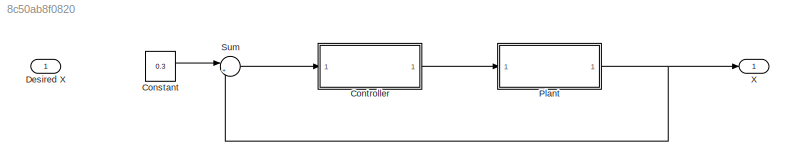
MODEL slx_8c50ab8f0820
KIND model
BLOCK [Constant] Constant
  Value = 0.3
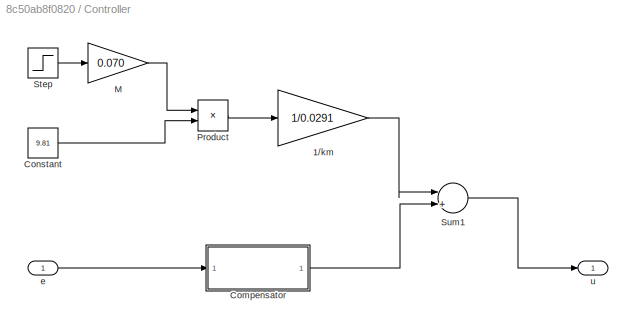
BLOCK [SubSystem] Controller
  FunctionWithSeparateData = off
  MaskHideContents = off
  MinAlgLoopOccurrences = off
  Opaque = off
  Ports = [1, 1]
  PropExecContextOutsideSubsystem = off
  RTWSystemCode = Auto
  RequestExecContextInheritance = off
BLOCK [Gain] Controller/1//km
  Gain = 1/0.0291
  OutDataTypeStr = Inherit: Inherit via internal rule
  ParamDataTypeStr = Inherit: Inherit via internal rule
  SaturateOnIntegerOverflow = off
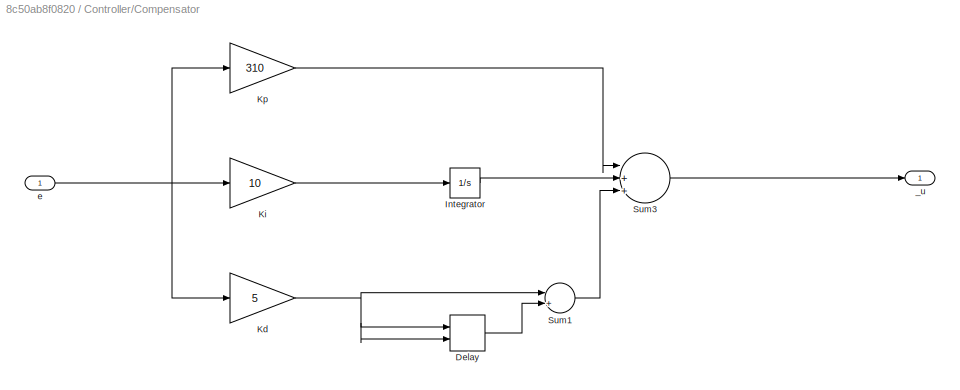
BLOCK [SubSystem] Controller/Compensator
  FunctionWithSeparateData = off
  MaskHideContents = off
  MinAlgLoopOccurrences = off
  Opaque = off
  Ports = [1, 1]
  PropExecContextOutsideSubsystem = off
  RTWSystemCode = Auto
  RequestExecContextInheritance = off
BLOCK [Delay] Controller/Compensator/Delay
  DelayLength = 1
  InitialCondition = 861
  InitialConditionSource = Input port
  InputPortMap = u0,p4
  InputProcessing = Inherited
  Ports = [2, 1]
  SampleTime = .01
BLOCK [Integrator] Controller/Compensator/Integrator
  Ports = [1, 1]
BLOCK [Gain] Controller/Compensator/Kd
  Gain = 5
  OutDataTypeStr = Inherit: Inherit via internal rule
  ParamDataTypeStr = Inherit: Inherit via internal rule
  SaturateOnIntegerOverflow = off
BLOCK [Gain] Controller/Compensator/Ki
  Gain = 10
  OutDataTypeStr = Inherit: Inherit via internal rule
  ParamDataTypeStr = Inherit: Inherit via internal rule
  SaturateOnIntegerOverflow = off
BLOCK [Gain] Controller/Compensator/Kp
  Gain = 310
  OutDataTypeStr = Inherit: Inherit via internal rule
  ParamDataTypeStr = Inherit: Inherit via internal rule
  SaturateOnIntegerOverflow = off
BLOCK [Sum] Controller/Compensator/Sum1
  InputSameDT = off
  Inputs = |+-
  OutDataTypeStr = Inherit: Inherit via internal rule
  Ports = [2, 1]
  SaturateOnIntegerOverflow = off
BLOCK [Sum] Controller/Compensator/Sum3
  InputSameDT = off
  Inputs = |+++
  OutDataTypeStr = Inherit: Inherit via internal rule
  Ports = [3, 1]
  SaturateOnIntegerOverflow = off
BLOCK [Outport] Controller/Compensator/_u
  IconDisplay = Port number
BLOCK [Inport] Controller/Compensator/e
  IconDisplay = Port number
BLOCK [Constant] Controller/Constant
  Value = 9.81
BLOCK [Gain] Controller/M
  Gain = 0.070
  OutDataTypeStr = Inherit: Inherit via internal rule
  ParamDataTypeStr = Inherit: Inherit via internal rule
  SaturateOnIntegerOverflow = off
BLOCK [Product] Controller/Product
  InputSameDT = off
  OutDataTypeStr = Inherit: Inherit via internal rule
  Ports = [2, 1]
  SaturateOnIntegerOverflow = off
BLOCK [Step] Controller/Step
  SampleTime = 0
  Time = 0
BLOCK [Sum] Controller/Sum1
  InputSameDT = off
  Inputs = |++
  OutDataTypeStr = Inherit: Inherit via internal rule
  Ports = [2, 1]
  SaturateOnIntegerOverflow = off
BLOCK [Inport] Controller/e
  IconDisplay = Port number
BLOCK [Outport] Controller/u
  IconDisplay = Port number
BLOCK [Inport] Desired X
  IconDisplay = Port number
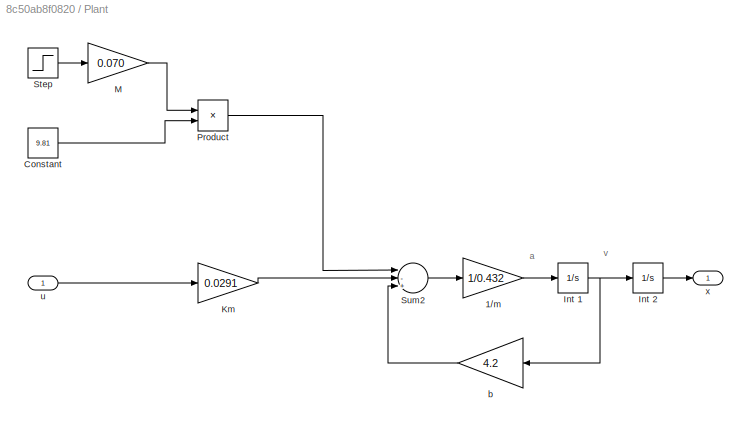
BLOCK [SubSystem] Plant
  FunctionWithSeparateData = off
  MaskHideContents = off
  MinAlgLoopOccurrences = off
  Opaque = off
  Ports = [1, 1]
  PropExecContextOutsideSubsystem = off
  RTWSystemCode = Auto
  RequestExecContextInheritance = off
BLOCK [Gain] Plant/1//m
  Gain = 1/0.432
  OutDataTypeStr = Inherit: Inherit via internal rule
  ParamDataTypeStr = Inherit: Inherit via internal rule
  SaturateOnIntegerOverflow = off
BLOCK [Constant] Plant/Constant
  Value = 9.81
BLOCK [Integrator] Plant/Int 1
  Ports = [1, 1]
BLOCK [Integrator] Plant/Int 2
  Ports = [1, 1]
BLOCK [Gain] Plant/Km
  Gain = 0.0291
  OutDataTypeStr = Inherit: Inherit via internal rule
  ParamDataTypeStr = Inherit: Inherit via internal rule
  SaturateOnIntegerOverflow = off
BLOCK [Gain] Plant/M
  Gain = 0.070
  OutDataTypeStr = Inherit: Inherit via internal rule
  ParamDataTypeStr = Inherit: Inherit via internal rule
  SaturateOnIntegerOverflow = off
BLOCK [Product] Plant/Product
  InputSameDT = off
  OutDataTypeStr = Inherit: Inherit via internal rule
  Ports = [2, 1]
  SaturateOnIntegerOverflow = off
BLOCK [Step] Plant/Step
  SampleTime = 0
  Time = 0
BLOCK [Sum] Plant/Sum2
  InputSameDT = off
  Inputs = |-+-
  OutDataTypeStr = Inherit: Inherit via internal rule
  Ports = [3, 1]
  SaturateOnIntegerOverflow = off
BLOCK [Gain] Plant/b
  Gain = 4.2
  OutDataTypeStr = Inherit: Inherit via internal rule
  ParamDataTypeStr = Inherit: Inherit via internal rule
  SaturateOnIntegerOverflow = off
BLOCK [Inport] Plant/u
  IconDisplay = Port number
BLOCK [Outport] Plant/x
  IconDisplay = Port number
BLOCK [Sum] Sum
  IconShape = round
  InputSameDT = off
  Inputs = |+-
  OutDataTypeStr = Inherit: Inherit via internal rule
  Ports = [2, 1]
  SaturateOnIntegerOverflow = off
BLOCK [Outport] X
  IconDisplay = Port number
ANNOTATION Plant: a
ANNOTATION Plant: v
LINE Constant:1 -> Sum:1
LINE Controller/1//km:1 -> Controller/Sum1:1
LINE Controller/Compensator/Delay:1 -> Controller/Compensator/Sum1:2
LINE Controller/Compensator/Integrator:1 -> Controller/Compensator/Sum3:2
NET Controller/Compensator/Kd:1 -> Controller/Compensator/Delay:1, Controller/Compensator/Delay:2, Controller/Compensator/Sum1:1
LINE Controller/Compensator/Ki:1 -> Controller/Compensator/Integrator:1
LINE Controller/Compensator/Kp:1 -> Controller/Compensator/Sum3:1
LINE Controller/Compensator/Sum1:1 -> Controller/Compensator/Sum3:3
LINE Controller/Compensator/Sum3:1 -> Controller/Compensator/_u:1
NET Controller/Compensator/e:1 -> Controller/Compensator/Kd:1, Controller/Compensator/Ki:1, Controller/Compensator/Kp:1
LINE Controller/Compensator:1 -> Controller/Sum1:2
LINE Controller/Constant:1 -> Controller/Product:2
LINE Controller/M:1 -> Controller/Product:1
LINE Controller/Product:1 -> Controller/1//km:1
LINE Controller/Step:1 -> Controller/M:1
LINE Controller/Sum1:1 -> Controller/u:1
LINE Controller/e:1 -> Controller/Compensator:1
LINE Controller:1 -> Plant:1
LINE Plant/1//m:1 -> Plant/Int 1:1
LINE Plant/Constant:1 -> Plant/Product:2
NET Plant/Int 1:1 -> Plant/Int 2:1, Plant/b:1
LINE Plant/Int 2:1 -> Plant/x:1
LINE Plant/Km:1 -> Plant/Sum2:2
LINE Plant/M:1 -> Plant/Product:1
LINE Plant/Product:1 -> Plant/Sum2:1
LINE Plant/Step:1 -> Plant/M:1
LINE Plant/Sum2:1 -> Plant/1//m:1
LINE Plant/b:1 -> Plant/Sum2:3
LINE Plant/u:1 -> Plant/Km:1
NET Plant:1 -> Sum:2, X:1
LINE Sum:1 -> Controller:1
note: NET lines group one-source signal fan-out (src -> all destinations, sorted); 1:1 wires keep LINE
